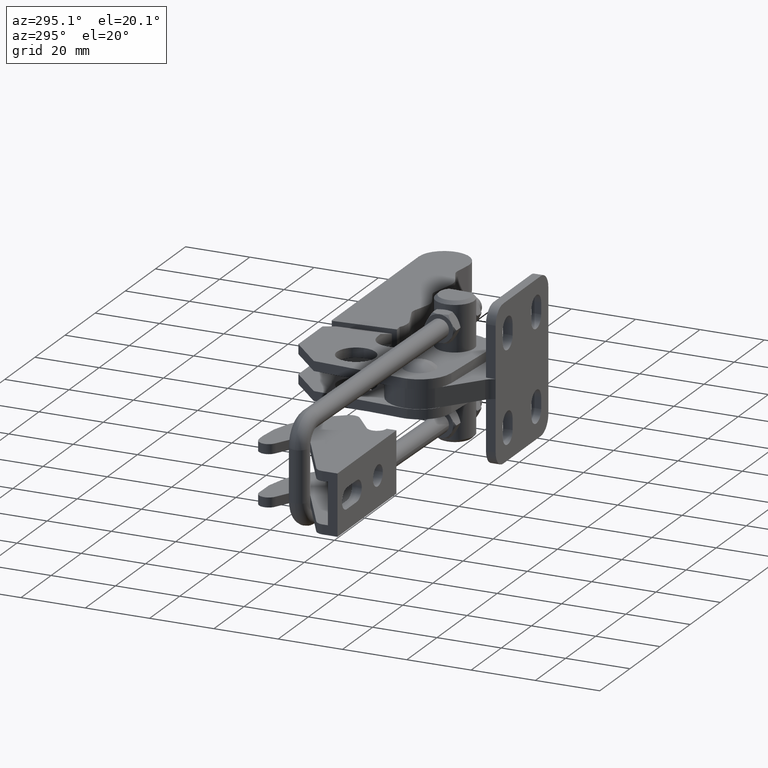
[diagram: clean part render]
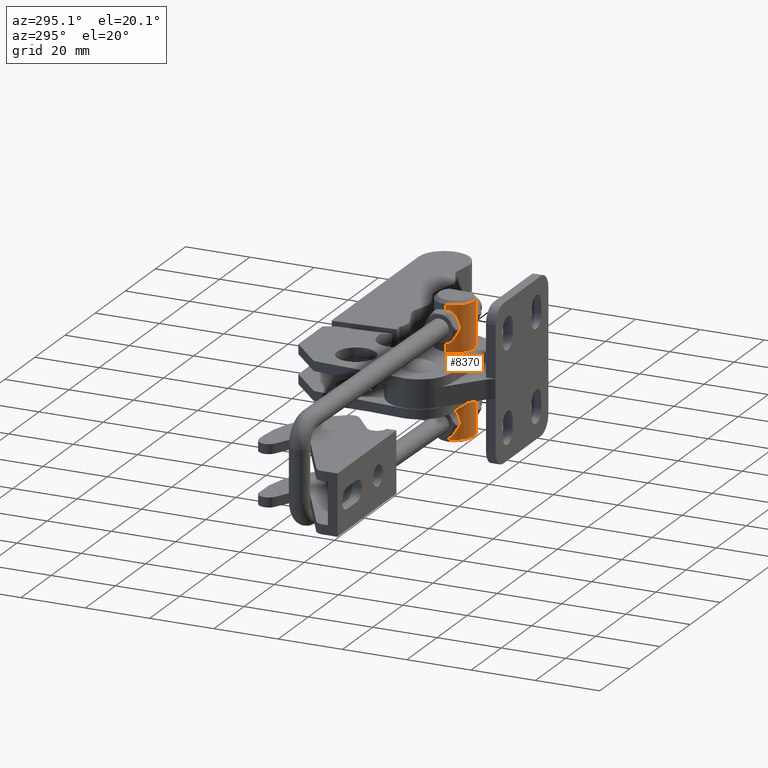
[diagram: same view with one face highlighted and labeled with its STEP entity id]
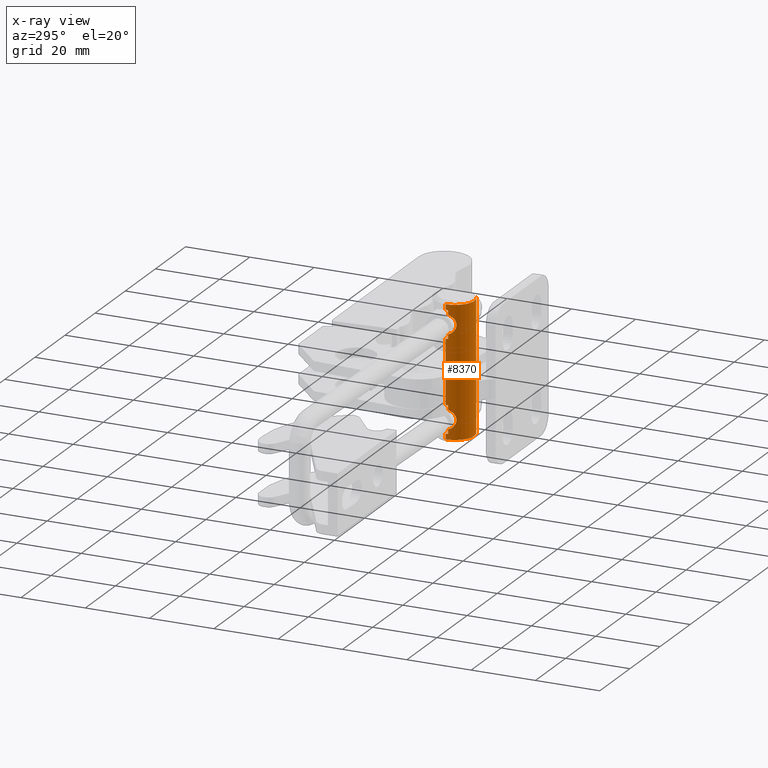
[diagram: x-ray of the same camera — body ghosted, the highlighted face saturated]
A machine part, auxiliary view. The second image highlights one B-rep face of the part: STEP entity #8370.
The next image is the same camera in x-ray: the body ghosted, the highlighted face saturated — about 0% of this face is hidden behind the body in this view.
In plain terms, the highlighted cylindrical surface (edge-blend (fillet) strip) has radius 6 mm, axis along (-0, -0, 1).
Its self-contained STEP definition (entity closure, byte-faithful):
#67 = VECTOR ( 'NONE', #3935, 1000.000000000000000 ) ;
#88 = CARTESIAN_POINT ( 'NONE',  ( -28.68610217046605400, 17.75992384205989100, -17.07219001802031500 ) ) ;
#92 = DIRECTION ( 'NONE',  ( 3.911366218132177800E-018, 7.658619818455770700E-019, -1.000000000000000000 ) ) ;
#195 = ORIENTED_EDGE ( 'NONE', *, *, #3616, .T. ) ;
#204 = CARTESIAN_POINT ( 'NONE',  ( -28.73578472387653800, 18.19636271290314900, -9.938293207638654500 ) ) ;
#293 = EDGE_CURVE ( 'NONE', #4925, #6559, #7005, .T. ) ;
#348 = DIRECTION ( 'NONE',  ( -4.510281037539698400E-017, -2.664535259100375700E-015, -1.000000000000000000 ) ) ;
#406 = DIRECTION ( 'NONE',  ( 9.073993480310691700E-018, 2.515382533872881800E-016, -1.000000000000000000 ) ) ;
#429 = B_SPLINE_CURVE_WITH_KNOTS ( 'NONE', 3,
 ( #1353, #2112, #2842, #8086 ),
 .UNSPECIFIED., .F., .F.,
 ( 4, 4 ),
 ( 0.003078957403695587600, 0.003361869258026193300 ),
 .UNSPECIFIED. ) ;
#471 = EDGE_LOOP ( 'NONE', ( #6320, #7148, #7825, #5339, #3355, #1881, #2345, #4806, #1843, #4710, #761, #195, #4216, #3247, #3546, #1170, #2672, #5985, #2584, #2975, #9307, #4793, #3645, #3816, #663, #8016 ) ) ;
#480 = CARTESIAN_POINT ( 'NONE',  ( -28.50866677094951000, 16.94863178786450700, 16.64256508088775300 ) ) ;
#490 = DIRECTION ( 'NONE',  ( -3.911366218132177800E-018, -7.658619818455770700E-019, 1.000000000000000000 ) ) ;
#515 = CARTESIAN_POINT ( 'NONE',  ( -28.06576543344585400, 15.87452966739249000, 13.46071246716071800 ) ) ;
#523 = EDGE_CURVE ( 'NONE', #3197, #2114, #5083, .T. ) ;
#562 = B_SPLINE_CURVE_WITH_KNOTS ( 'NONE', 3,
 ( #6605, #2115, #8861, #4340, #9713, #5086, #627, #5865, #1389, #6635, #2150, #7374, #2882, #8119, #3614, #8894, #4370, #9753, #5113, #656, #5905, #1419, #6673, #2183, #7409, #2914, #8158, #3648 ),
 .UNSPECIFIED., .F., .F.,
 ( 4, 2, 2, 2, 2, 2, 2, 2, 2, 2, 2, 2, 2, 4 ),
 ( 0.005551596557834361000, 0.006000160661444414000, 0.006448724765054468000, 0.007345852972274561100, 0.008242981179494655200, 0.008691545283104701300, 0.009140109386714745700, 0.009588673490324790100, 0.01003723759393483600, 0.01048580169754488200, 0.01093436580115492900, 0.01138292990476496800, 0.01183149400837501000, 0.01272862221559509900 ),
 .UNSPECIFIED. ) ;
#566 = CARTESIAN_POINT ( 'NONE',  ( -28.75203346772051600, 18.78737817134133100, 18.58012701892147300 ) ) ;
#627 = CARTESIAN_POINT ( 'NONE',  ( -28.43397478129987700, 16.72155574850926400, -12.04886762562735000 ) ) ;
#656 = CARTESIAN_POINT ( 'NONE',  ( -28.11355756720297400, 15.96751132215305800, -15.32127981136378600 ) ) ;
#663 = ORIENTED_EDGE ( 'NONE', *, *, #2597, .T. ) ;
#761 = ORIENTED_EDGE ( 'NONE', *, *, #3488, .T. ) ;
#818 = CARTESIAN_POINT ( 'NONE',  ( -28.71795397972040600, 18.01353155314767600, -17.14870660812920300 ) ) ;
#889 = CARTESIAN_POINT ( 'NONE',  ( -28.75203346772051200, 18.78737817134133100, -20.25000000000059000 ) ) ;
#944 = VERTEX_POINT ( 'NONE', #996 ) ;
#996 = CARTESIAN_POINT ( 'NONE',  ( -19.45577835765157100, 13.65126671144122000, 8.749999999999385400 ) ) ;
#1097 = FACE_OUTER_BOUND ( 'NONE', #471, .T. ) ;
#1170 = ORIENTED_EDGE ( 'NONE', *, *, #523, .F. ) ;
#1193 = VERTEX_POINT ( 'NONE', #4741 ) ;
#1210 = VERTEX_POINT ( 'NONE', #889 ) ;
#1230 = CARTESIAN_POINT ( 'NONE',  ( -28.28698109070231200, 16.33556312360038000, 16.01685722657382600 ) ) ;
#1235 = EDGE_CURVE ( 'NONE', #5920, #2746, #2189, .T. ) ;
#1264 = CARTESIAN_POINT ( 'NONE',  ( -28.14237166250690000, 16.02506473886343500, 13.04018921934738300 ) ) ;
#1311 = CIRCLE ( 'NONE', #8584, 6.000000000000001800 ) ;
#1353 = CARTESIAN_POINT ( 'NONE',  ( -28.71795397972040600, 18.01353155314767600, -18.50978854942941600 ) ) ;
#1371 = CARTESIAN_POINT ( 'NONE',  ( -16.75457558350878900, 18.54038765215882000, 21.24999999999930700 ) ) ;
#1389 = CARTESIAN_POINT ( 'NONE',  ( -28.21293147464852100, 16.17165078981867400, -12.73206058867614000 ) ) ;
#1406 = CARTESIAN_POINT ( 'NONE',  ( -28.71795397972035600, 18.01353155314724200, 21.24999999999930700 ) ) ;
#1419 = CARTESIAN_POINT ( 'NONE',  ( -28.20541690614272300, 16.15791472648090400, -15.72292597974756700 ) ) ;
#1477 = DIRECTION ( 'NONE',  ( 3.911366218132177800E-018, 7.658619818455770700E-019, -1.000000000000000000 ) ) ;
#1510 = CARTESIAN_POINT ( 'NONE',  ( -28.59242266330957300, 17.28377444715671600, -16.84807621135390900 ) ) ;
#1524 = CARTESIAN_POINT ( 'NONE',  ( -28.74159145377347400, 18.28915679037033500, 9.919872981077091400 ) ) ;
#1556 = DIRECTION ( 'NONE',  ( -3.911366218132177800E-018, -7.658619818455770700E-019, 1.000000000000000000 ) ) ;
#1673 = EDGE_CURVE ( 'NONE', #4925, #5920, #3661, .T. ) ;
#1709 = CARTESIAN_POINT ( 'NONE',  ( -28.72787195047175100, 18.10449348940780500, -9.961765433263471100 ) ) ;
#1712 = VERTEX_POINT ( 'NONE', #3361 ) ;
#1843 = ORIENTED_EDGE ( 'NONE', *, *, #4365, .T. ) ;
#1881 = ORIENTED_EDGE ( 'NONE', *, *, #6010, .F. ) ;
#1904 = EDGE_CURVE ( 'NONE', #2114, #7287, #9109, .T. ) ;
#1963 = CARTESIAN_POINT ( 'NONE',  ( -28.71795397972035600, 18.01353155314724200, 17.14870660812762500 ) ) ;
#1996 = CARTESIAN_POINT ( 'NONE',  ( -28.12340360563134600, 15.98680937636579800, 15.36971686143586700 ) ) ;
#2037 = CARTESIAN_POINT ( 'NONE',  ( -28.23969622418239900, 16.23327227604188000, 12.65179071003746900 ) ) ;
#2096 = DIRECTION ( 'NONE',  ( -3.911366218132177800E-018, -7.658619818455770700E-019, 1.000000000000000000 ) ) ;
#2112 = CARTESIAN_POINT ( 'NONE',  ( -28.72777881454624400, 18.10363930014551000, -18.53796744090989900 ) ) ;
#2114 = VERTEX_POINT ( 'NONE', #6297 ) ;
#2115 = CARTESIAN_POINT ( 'NONE',  ( -28.70223330861372100, 17.86935057913352800, -11.38964686430111000 ) ) ;
#2147 = CIRCLE ( 'NONE', #4290, 6.000000000000004400 ) ;
#2150 = CARTESIAN_POINT ( 'NONE',  ( -28.09689867659961100, 15.93473450021174300, -13.26780053206198500 ) ) ;
#2160 = CARTESIAN_POINT ( 'NONE',  ( -28.71795397972035600, 18.01353155314724200, 17.14870660812762500 ) ) ;
#2177 = CARTESIAN_POINT ( 'NONE',  ( -28.74159145377338100, 18.28915679037133700, -9.919872981078489400 ) ) ;
#2183 = CARTESIAN_POINT ( 'NONE',  ( -28.31121882937066700, 16.40159413163486200, -16.08708164160023900 ) ) ;
#2188 = CARTESIAN_POINT ( 'NONE',  ( -19.45577835765157100, 13.65126671144122000, 21.24999999999930700 ) ) ;
#2189 = LINE ( 'NONE', #2188, #7674 ) ;
#2260 = DIRECTION ( 'NONE',  ( 3.911366218132177800E-018, 7.658619818455770700E-019, -1.000000000000000000 ) ) ;
#2293 = CYLINDRICAL_SURFACE ( 'NONE', #6796, 6.000000000000004400 ) ;
#2339 = DIRECTION ( 'NONE',  ( -0.9997881570176433400, 0.02058254326520931500, 0.0000000000000000000 ) ) ;
#2345 = ORIENTED_EDGE ( 'NONE', *, *, #4604, .F. ) ;
#2371 = CIRCLE ( 'NONE', #9008, 6.000000000000001800 ) ;
#2502 = CARTESIAN_POINT ( 'NONE',  ( -22.75330452561465200, 18.66388291175007600, 8.749999999999385400 ) ) ;
#2584 = ORIENTED_EDGE ( 'NONE', *, *, #8247, .T. ) ;
#2592 = CARTESIAN_POINT ( 'NONE',  ( -28.73578472387651300, 18.19636271290286400, 18.56170679236127800 ) ) ;
#2597 = EDGE_CURVE ( 'NONE', #1210, #2746, #7173, .T. ) ;
#2672 = ORIENTED_EDGE ( 'NONE', *, *, #8881, .T. ) ;
#2688 = CARTESIAN_POINT ( 'NONE',  ( -28.70223330861365000, 17.86935057913306900, 17.11035313569877700 ) ) ;
#2699 = CARTESIAN_POINT ( 'NONE',  ( -28.75203346772051600, 18.78737817134133100, 21.24999999999930700 ) ) ;
#2723 = CARTESIAN_POINT ( 'NONE',  ( -28.05308675689912000, 15.85060052215524900, 14.94668779758230100 ) ) ;
#2746 = VERTEX_POINT ( 'NONE', #5293 ) ;
#2756 = CARTESIAN_POINT ( 'NONE',  ( -28.34874064001266400, 16.49534019951081700, 12.29860430993655200 ) ) ;
#2764 = CARTESIAN_POINT ( 'NONE',  ( -28.59242266330962000, 17.28377444715691200, 11.65192378864599800 ) ) ;
#2842 = CARTESIAN_POINT ( 'NONE',  ( -28.73572876905792100, 18.19546853048505900, -18.56152929135011200 ) ) ;
#2882 = CARTESIAN_POINT ( 'NONE',  ( -28.03586882680228600, 15.81870447073105400, -13.70198302336472200 ) ) ;
#2914 = CARTESIAN_POINT ( 'NONE',  ( -28.45953921259291500, 16.79711647815740200, -16.51918301580487400 ) ) ;
#2949 = CARTESIAN_POINT ( 'NONE',  ( -28.71795397972036000, 18.01353155314723200, 9.990211450570672700 ) ) ;
#2975 = ORIENTED_EDGE ( 'NONE', *, *, #9421, .T. ) ;
#3046 = DIRECTION ( 'NONE',  ( 2.428612866367529900E-017, 1.498801083243961300E-015, 1.000000000000000000 ) ) ;
#3057 = VECTOR ( 'NONE', #1477, 1000.000000000000000 ) ;
#3081 = CARTESIAN_POINT ( 'NONE',  ( -16.75457558350878900, 18.54038765215882000, -8.750000000000611100 ) ) ;
#3188 = VERTEX_POINT ( 'NONE', #9747 ) ;
#3197 = VERTEX_POINT ( 'NONE', #2177 ) ;
#3231 = AXIS2_PLACEMENT_3D ( 'NONE', #5644, #406, #9649 ) ;
#3243 = DIRECTION ( 'NONE',  ( 0.9997881570176433400, -0.02058254326520642500, 0.0000000000000000000 ) ) ;
#3247 = ORIENTED_EDGE ( 'NONE', *, *, #3259, .F. ) ;
#3259 = EDGE_CURVE ( 'NONE', #7287, #8001, #1311, .T. ) ;
#3273 = CARTESIAN_POINT ( 'NONE',  ( -28.74159145377347400, 18.28915679037033500, 9.919872981077091400 ) ) ;
#3331 = EDGE_CURVE ( 'NONE', #9127, #4436, #2371, .T. ) ;
#3336 = CARTESIAN_POINT ( 'NONE',  ( -28.72787195047171900, 18.10449348940744600, 18.53823456673642400 ) ) ;
#3355 = ORIENTED_EDGE ( 'NONE', *, *, #7388, .F. ) ;
#3361 = CARTESIAN_POINT ( 'NONE',  ( -28.71795397972036000, 18.01353155314726000, 11.35129339187102600 ) ) ;
#3462 = EDGE_CURVE ( 'NONE', #1210, #9127, #9197, .T. ) ;
#3466 = CARTESIAN_POINT ( 'NONE',  ( -28.01396457635300100, 15.77840517175845700, 14.50182651144169700 ) ) ;
#3483 = DIRECTION ( 'NONE',  ( -2.428612866367529900E-017, -1.498801083243961300E-015, -1.000000000000000000 ) ) ;
#3488 = EDGE_CURVE ( 'NONE', #9580, #1712, #3803, .T. ) ;
#3495 = CARTESIAN_POINT ( 'NONE',  ( -28.53154755598592000, 17.02621719537039300, 11.79986963667775700 ) ) ;
#3546 = ORIENTED_EDGE ( 'NONE', *, *, #1904, .F. ) ;
#3614 = CARTESIAN_POINT ( 'NONE',  ( -28.00900320490846700, 15.76946781994378800, -14.14712547943543400 ) ) ;
#3616 = EDGE_CURVE ( 'NONE', #1712, #6577, #7274, .T. ) ;
#3645 = ORIENTED_EDGE ( 'NONE', *, *, #3331, .F. ) ;
#3648 = CARTESIAN_POINT ( 'NONE',  ( -28.59242266330957300, 17.28377444715671600, -16.84807621135390900 ) ) ;
#3661 = CIRCLE ( 'NONE', #3231, 6.000000000000004400 ) ;
#3708 = CARTESIAN_POINT ( 'NONE',  ( -28.71795397972036000, 18.01353155314723200, 18.50978854942789600 ) ) ;
#3780 = CARTESIAN_POINT ( 'NONE',  ( -28.59242266330957300, 17.28377444715671600, -16.84807621135390900 ) ) ;
#3803 = B_SPLINE_CURVE_WITH_KNOTS ( 'NONE', 3,
 ( #2764, #6485, #8764, #4266, #9623, #5005 ),
 .UNSPECIFIED., .F., .F.,
 ( 4, 2, 4 ),
 ( 0.01272862221559533000, 0.01312842919038509700, 0.01352823616517486200 ),
 .UNSPECIFIED. ) ;
#3816 = ORIENTED_EDGE ( 'NONE', *, *, #3462, .F. ) ;
#3898 = CARTESIAN_POINT ( 'NONE',  ( -22.75330452561465200, 18.66388291175007600, -18.58012701892287700 ) ) ;
#3935 = DIRECTION ( 'NONE',  ( 3.911366218132177800E-018, 7.658619818455770700E-019, -1.000000000000000000 ) ) ;
#4092 = DIRECTION ( 'NONE',  ( 3.911366218132177800E-018, 7.658619818455770700E-019, -1.000000000000000000 ) ) ;
#4156 = DIRECTION ( 'NONE',  ( -3.911366218132177800E-018, -7.658619818455770700E-019, 1.000000000000000000 ) ) ;
#4189 = CARTESIAN_POINT ( 'NONE',  ( -28.68128892045304900, 17.72672446324665400, 17.06079458370042400 ) ) ;
#4216 = ORIENTED_EDGE ( 'NONE', *, *, #8300, .T. ) ;
#4222 = CARTESIAN_POINT ( 'NONE',  ( -28.01161338929406600, 15.77421247632716100, 14.05322783960395200 ) ) ;
#4266 = CARTESIAN_POINT ( 'NONE',  ( -28.68610217046601100, 17.75992384205967800, 11.42780998197979200 ) ) ;
#4290 = AXIS2_PLACEMENT_3D ( 'NONE', #2502, #7737, #3243 ) ;
#4305 = VERTEX_POINT ( 'NONE', #9053 ) ;
#4340 = CARTESIAN_POINT ( 'NONE',  ( -28.63161229473696800, 17.45360909375468600, -11.55734189889594500 ) ) ;
#4365 = EDGE_CURVE ( 'NONE', #6622, #7919, #5018, .T. ) ;
#4370 = CARTESIAN_POINT ( 'NONE',  ( -28.01937996661109800, 15.78824980934989100, -14.59894568656095400 ) ) ;
#4424 = DIRECTION ( 'NONE',  ( -3.911366218132177800E-018, -7.658619818455770700E-019, 1.000000000000000000 ) ) ;
#4436 = VERTEX_POINT ( 'NONE', #4727 ) ;
#4512 = VECTOR ( 'NONE', #9096, 1000.000000000000000 ) ;
#4532 = CARTESIAN_POINT ( 'NONE',  ( -28.64391454709585000, 17.51673711924825100, -16.97194598534335000 ) ) ;
#4546 = CARTESIAN_POINT ( 'NONE',  ( -28.75203346772051600, 18.78737817134133100, 21.24999999999930700 ) ) ;
#4604 = EDGE_CURVE ( 'NONE', #6193, #4657, #6933, .T. ) ;
#4651 = DIRECTION ( 'NONE',  ( 4.625929269271484500E-015, 1.000000000000000000, -2.891205793294677400E-015 ) ) ;
#4657 = VERTEX_POINT ( 'NONE', #566 ) ;
#4704 = EDGE_CURVE ( 'NONE', #7222, #4436, #429, .T. ) ;
#4710 = ORIENTED_EDGE ( 'NONE', *, *, #5848, .T. ) ;
#4727 = CARTESIAN_POINT ( 'NONE',  ( -28.74159145377348400, 18.28915679037048700, -18.58012701892288000 ) ) ;
#4741 = CARTESIAN_POINT ( 'NONE',  ( -28.71795397972040600, 18.01353155314767600, -9.990211450571953500 ) ) ;
#4780 = VECTOR ( 'NONE', #92, 1000.000000000000000 ) ;
#4793 = ORIENTED_EDGE ( 'NONE', *, *, #4704, .T. ) ;
#4804 = DIRECTION ( 'NONE',  ( 0.0000000000000000000, -1.000000000000000000, 2.602085213965209100E-015 ) ) ;
#4806 = ORIENTED_EDGE ( 'NONE', *, *, #5757, .T. ) ;
#4841 = LINE ( 'NONE', #8440, #6885 ) ;
#4925 = VERTEX_POINT ( 'NONE', #3081 ) ;
#4930 = CARTESIAN_POINT ( 'NONE',  ( -28.60299672518745200, 17.32311021717755400, 16.87434424638160400 ) ) ;
#4963 = CARTESIAN_POINT ( 'NONE',  ( -28.04652690471854000, 15.83853105131932700, 13.60508626728172600 ) ) ;
#4969 = VECTOR ( 'NONE', #7326, 1000.000000000000000 ) ;
#5005 = CARTESIAN_POINT ( 'NONE',  ( -28.71795397972036000, 18.01353155314726000, 11.35129339187102600 ) ) ;
#5018 = LINE ( 'NONE', #7603, #4780 ) ;
#5062 = CARTESIAN_POINT ( 'NONE',  ( -19.45577835765157100, 13.65126671144122000, -8.750000000000614600 ) ) ;
#5083 = CIRCLE ( 'NONE', #6000, 6.000000000000003600 ) ;
#5086 = CARTESIAN_POINT ( 'NONE',  ( -28.50866677094961300, 16.94863178786485500, -11.85743491911200700 ) ) ;
#5113 = CARTESIAN_POINT ( 'NONE',  ( -28.06576543344580100, 15.87452966739239600, -15.03928753283900500 ) ) ;
#5220 = CARTESIAN_POINT ( 'NONE',  ( -28.72777881454621300, 18.10363930014515800, 9.962032559090140200 ) ) ;
#5263 = CARTESIAN_POINT ( 'NONE',  ( -28.75203346772051600, 18.78737817134133100, -18.58012701892287700 ) ) ;
#5286 = CARTESIAN_POINT ( 'NONE',  ( -28.70393177924275500, 17.88492797706825500, -17.11449686760571600 ) ) ;
#5293 = CARTESIAN_POINT ( 'NONE',  ( -19.45577835765157100, 13.65126671144122400, -20.25000000000059000 ) ) ;
#5339 = ORIENTED_EDGE ( 'NONE', *, *, #7758, .F. ) ;
#5414 = CARTESIAN_POINT ( 'NONE',  ( -28.74159145377338100, 18.28915679037133700, -9.919872981078489400 ) ) ;
#5501 = CARTESIAN_POINT ( 'NONE',  ( -19.45577835765157100, 13.65126671144121500, 20.24999999999936100 ) ) ;
#5516 = VERTEX_POINT ( 'NONE', #1510 ) ;
#5545 = LINE ( 'NONE', #8437, #67 ) ;
#5579 = CARTESIAN_POINT ( 'NONE',  ( -22.75330452561465200, 18.66388291175007600, -9.919872981078489400 ) ) ;
#5644 = CARTESIAN_POINT ( 'NONE',  ( -22.75330452561465200, 18.66388291175007600, -8.750000000000611100 ) ) ;
#5706 = CARTESIAN_POINT ( 'NONE',  ( -28.43397478129976700, 16.72155574850895800, 16.45113237437239600 ) ) ;
#5737 = CARTESIAN_POINT ( 'NONE',  ( -28.11355756720304900, 15.96751132215316500, 13.17872018863595200 ) ) ;
#5757 = EDGE_CURVE ( 'NONE', #6193, #6622, #6665, .T. ) ;
#5848 = EDGE_CURVE ( 'NONE', #7919, #9580, #7403, .T. ) ;
#5865 = CARTESIAN_POINT ( 'NONE',  ( -28.28698109070241500, 16.33556312360062200, -12.48314277342587900 ) ) ;
#5905 = CARTESIAN_POINT ( 'NONE',  ( -28.14237166250682900, 16.02506473886330300, -15.45981078065237700 ) ) ;
#5920 = VERTEX_POINT ( 'NONE', #5062 ) ;
#5985 = ORIENTED_EDGE ( 'NONE', *, *, #8478, .T. ) ;
#5999 = CARTESIAN_POINT ( 'NONE',  ( -28.73572876905790000, 18.19546853048480600, 9.938470708649887800 ) ) ;
#6000 = AXIS2_PLACEMENT_3D ( 'NONE', #5579, #348, #4804 ) ;
#6010 = EDGE_CURVE ( 'NONE', #4657, #7623, #8500, .T. ) ;
#6032 = VECTOR ( 'NONE', #4092, 1000.000000000000000 ) ;
#6186 = VERTEX_POINT ( 'NONE', #5501 ) ;
#6193 = VERTEX_POINT ( 'NONE', #7033 ) ;
#6216 = CARTESIAN_POINT ( 'NONE',  ( -28.75203346772051900, 18.78737817134133100, 20.24999999999936100 ) ) ;
#6297 = CARTESIAN_POINT ( 'NONE',  ( -28.75203346772051600, 18.78737817134133100, -9.919872981078489400 ) ) ;
#6320 = ORIENTED_EDGE ( 'NONE', *, *, #1673, .F. ) ;
#6474 = CARTESIAN_POINT ( 'NONE',  ( -28.21293147464842800, 16.17165078981847900, 15.76793941132355000 ) ) ;
#6485 = CARTESIAN_POINT ( 'NONE',  ( -28.61955177629839800, 17.39855535009052500, 11.58599142640585500 ) ) ;
#6508 = CARTESIAN_POINT ( 'NONE',  ( -28.20541690614281500, 16.15791472648105300, 12.77707402025221800 ) ) ;
#6559 = VERTEX_POINT ( 'NONE', #7379 ) ;
#6573 = CARTESIAN_POINT ( 'NONE',  ( -22.75330452561465200, 18.66388291175007600, -20.25000000000059000 ) ) ;
#6577 = VERTEX_POINT ( 'NONE', #2949 ) ;
#6605 = CARTESIAN_POINT ( 'NONE',  ( -28.71795397972040600, 18.01353155314769000, -11.35129339187216500 ) ) ;
#6622 = VERTEX_POINT ( 'NONE', #3708 ) ;
#6635 = CARTESIAN_POINT ( 'NONE',  ( -28.12340360563139900, 15.98680937636592600, -13.13028313856381300 ) ) ;
#6665 = B_SPLINE_CURVE_WITH_KNOTS ( 'NONE', 3,
 ( #7104, #2592, #3336, #8580 ),
 .UNSPECIFIED., .F., .F.,
 ( 4, 4 ),
 ( 0.003871627593182385000, 0.004154026148367888200 ),
 .UNSPECIFIED. ) ;
#6673 = CARTESIAN_POINT ( 'NONE',  ( -28.23969622418233200, 16.23327227604173100, -15.84820928996232300 ) ) ;
#6703 = CARTESIAN_POINT ( 'NONE',  ( -28.71795397972036000, 18.01353155314723200, 9.990211450570672700 ) ) ;
#6796 = AXIS2_PLACEMENT_3D ( 'NONE', #7498, #1556, #2339 ) ;
#6885 = VECTOR ( 'NONE', #9256, 1000.000000000000000 ) ;
#6893 = EDGE_CURVE ( 'NONE', #3188, #7222, #4841, .T. ) ;
#6933 = CIRCLE ( 'NONE', #8223, 6.000000000000003600 ) ;
#6951 = CARTESIAN_POINT ( 'NONE',  ( -28.71795397972040600, 18.01353155314767600, -9.990211450571953500 ) ) ;
#7005 = LINE ( 'NONE', #1371, #4969 ) ;
#7033 = CARTESIAN_POINT ( 'NONE',  ( -28.74159145377336700, 18.28915679037113800, 18.58012701892147300 ) ) ;
#7086 = VECTOR ( 'NONE', #4156, 1000.000000000000000 ) ;
#7104 = CARTESIAN_POINT ( 'NONE',  ( -28.74159145377336700, 18.28915679037113800, 18.58012701892147300 ) ) ;
#7148 = ORIENTED_EDGE ( 'NONE', *, *, #293, .T. ) ;
#7162 = VECTOR ( 'NONE', #490, 1000.000000000000000 ) ;
#7173 = CIRCLE ( 'NONE', #8388, 6.000000000000000900 ) ;
#7218 = CARTESIAN_POINT ( 'NONE',  ( -28.09689867659955800, 15.93473450021162700, 15.23219946793768500 ) ) ;
#7222 = VERTEX_POINT ( 'NONE', #7983 ) ;
#7230 = CARTESIAN_POINT ( 'NONE',  ( -28.59242266330962000, 17.28377444715691200, 11.65192378864599800 ) ) ;
#7251 = CARTESIAN_POINT ( 'NONE',  ( -28.31121882937073800, 16.40159413163504000, 12.41291835839958100 ) ) ;
#7270 = B_SPLINE_CURVE_WITH_KNOTS ( 'NONE', 3,
 ( #5414, #204, #1709, #6951 ),
 .UNSPECIFIED., .F., .F.,
 ( 4, 4 ),
 ( 0.003871627593182065000, 0.004154026148367307900 ),
 .UNSPECIFIED. ) ;
#7274 = LINE ( 'NONE', #1406, #3057 ) ;
#7287 = VERTEX_POINT ( 'NONE', #9671 ) ;
#7317 = DIRECTION ( 'NONE',  ( -0.9997881570176433400, 0.02058254326520932800, 0.0000000000000000000 ) ) ;
#7326 = DIRECTION ( 'NONE',  ( -3.911366218132177800E-018, -7.658619818455770700E-019, 1.000000000000000000 ) ) ;
#7374 = CARTESIAN_POINT ( 'NONE',  ( -28.05308675689916200, 15.85060052215533900, -13.55331220241736500 ) ) ;
#7379 = CARTESIAN_POINT ( 'NONE',  ( -16.75457558350878900, 18.54038765215882000, 8.749999999999385400 ) ) ;
#7388 = EDGE_CURVE ( 'NONE', #7623, #6186, #9664, .T. ) ;
#7403 = B_SPLINE_CURVE_WITH_KNOTS ( 'NONE', 3,
 ( #1963, #2688, #4189, #9542, #4930, #480, #5706, #1230, #6474, #1996, #7218, #2723, #7969, #3466, #8717, #4222, #9574, #4963, #515, #5737, #1264, #6508, #2037, #7251, #2756, #8002, #3495, #8753 ),
 .UNSPECIFIED., .F., .F.,
 ( 4, 2, 2, 2, 2, 2, 2, 2, 2, 2, 2, 2, 2, 4 ),
 ( 0.005551596557834852800, 0.006000160661444891100, 0.006448724765054930300, 0.007345852972274993100, 0.008242981179495055900, 0.008691545283105084700, 0.009140109386715113500, 0.009588673490325140500, 0.01003723759393516900, 0.01048580169754519800, 0.01093436580115522700, 0.01138292990476525400, 0.01183149400837528100, 0.01272862221559533000 ),
 .UNSPECIFIED. ) ;
#7409 = CARTESIAN_POINT ( 'NONE',  ( -28.34874064001260100, 16.49534019951064300, -16.20139569006327900 ) ) ;
#7498 = CARTESIAN_POINT ( 'NONE',  ( -22.75330452561465200, 18.66388291175007600, 21.24999999999930700 ) ) ;
#7524 = CARTESIAN_POINT ( 'NONE',  ( -22.75330452561465200, 18.66388291175007600, 9.919872981077089600 ) ) ;
#7603 = CARTESIAN_POINT ( 'NONE',  ( -28.71795397972035600, 18.01353155314724200, 21.24999999999930700 ) ) ;
#7623 = VERTEX_POINT ( 'NONE', #6216 ) ;
#7674 = VECTOR ( 'NONE', #2260, 1000.000000000000000 ) ;
#7737 = DIRECTION ( 'NONE',  ( -3.911366218132177800E-018, -7.658619818455770700E-019, 1.000000000000000000 ) ) ;
#7758 = EDGE_CURVE ( 'NONE', #6186, #944, #8018, .T. ) ;
#7825 = ORIENTED_EDGE ( 'NONE', *, *, #9177, .F. ) ;
#7919 = VERTEX_POINT ( 'NONE', #2160 ) ;
#7969 = CARTESIAN_POINT ( 'NONE',  ( -28.03586882680225000, 15.81870447073098500, 14.79801697663494600 ) ) ;
#7983 = CARTESIAN_POINT ( 'NONE',  ( -28.71795397972040600, 18.01353155314767600, -18.50978854942941600 ) ) ;
#7989 = CARTESIAN_POINT ( 'NONE',  ( -22.75330452561465200, 18.66388291175007600, 18.58012701892147300 ) ) ;
#8001 = VERTEX_POINT ( 'NONE', #3273 ) ;
#8002 = CARTESIAN_POINT ( 'NONE',  ( -28.45953921259296100, 16.79711647815758000, 11.98081698419499500 ) ) ;
#8016 = ORIENTED_EDGE ( 'NONE', *, *, #1235, .F. ) ;
#8018 = LINE ( 'NONE', #8582, #6032 ) ;
#8023 = B_SPLINE_CURVE_WITH_KNOTS ( 'NONE', 3,
 ( #3780, #8288, #4532, #88, #5286, #818 ),
 .UNSPECIFIED., .F., .F.,
 ( 4, 2, 4 ),
 ( 0.01272862221559509900, 0.01312842919038521200, 0.01352823616517532400 ),
 .UNSPECIFIED. ) ;
#8027 = AXIS2_PLACEMENT_3D ( 'NONE', #8961, #4424, #9818 ) ;
#8086 = CARTESIAN_POINT ( 'NONE',  ( -28.74159145377348400, 18.28915679037048700, -18.58012701892288000 ) ) ;
#8119 = CARTESIAN_POINT ( 'NONE',  ( -28.01396457635300100, 15.77840517175848400, -13.99817348855797900 ) ) ;
#8158 = CARTESIAN_POINT ( 'NONE',  ( -28.53154755598587000, 17.02621719537019400, -16.70013036332213100 ) ) ;
#8223 = AXIS2_PLACEMENT_3D ( 'NONE', #7989, #3483, #8738 ) ;
#8247 = EDGE_CURVE ( 'NONE', #4305, #5516, #562, .T. ) ;
#8279 = DIRECTION ( 'NONE',  ( 0.0000000000000000000, 1.000000000000000000, -1.445602896647338700E-015 ) ) ;
#8288 = CARTESIAN_POINT ( 'NONE',  ( -28.61955177629836600, 17.39855535009042600, -16.91400857359411700 ) ) ;
#8300 = EDGE_CURVE ( 'NONE', #6577, #8001, #8774, .T. ) ;
#8370 = ADVANCED_FACE ( 'NONE', ( #1097 ), #2293, .T. ) ;
#8388 = AXIS2_PLACEMENT_3D ( 'NONE', #6573, #2096, #7317 ) ;
#8437 = CARTESIAN_POINT ( 'NONE',  ( -28.71795397972040600, 18.01353155314769000, 21.24999999999930700 ) ) ;
#8440 = CARTESIAN_POINT ( 'NONE',  ( -28.71795397972040600, 18.01353155314769000, 21.24999999999930700 ) ) ;
#8478 = EDGE_CURVE ( 'NONE', #1193, #4305, #5545, .T. ) ;
#8500 = LINE ( 'NONE', #4546, #4512 ) ;
#8580 = CARTESIAN_POINT ( 'NONE',  ( -28.71795397972036000, 18.01353155314723200, 18.50978854942789600 ) ) ;
#8582 = CARTESIAN_POINT ( 'NONE',  ( -19.45577835765157100, 13.65126671144122000, 21.24999999999930700 ) ) ;
#8584 = AXIS2_PLACEMENT_3D ( 'NONE', #7524, #3046, #8279 ) ;
#8717 = CARTESIAN_POINT ( 'NONE',  ( -28.00900320490846300, 15.76946781994378100, 14.35287452056424400 ) ) ;
#8738 = DIRECTION ( 'NONE',  ( -3.469446951953612200E-015, -1.000000000000000000, 1.734723475976806100E-015 ) ) ;
#8753 = CARTESIAN_POINT ( 'NONE',  ( -28.59242266330962000, 17.28377444715691200, 11.65192378864599800 ) ) ;
#8764 = CARTESIAN_POINT ( 'NONE',  ( -28.64391454709585000, 17.51673711924825100, 11.52805401465668400 ) ) ;
#8774 = B_SPLINE_CURVE_WITH_KNOTS ( 'NONE', 3,
 ( #6703, #5220, #5999, #1524 ),
 .UNSPECIFIED., .F., .F.,
 ( 4, 4 ),
 ( 0.003078957403695583700, 0.003361869258026500300 ),
 .UNSPECIFIED. ) ;
#8861 = CARTESIAN_POINT ( 'NONE',  ( -28.68128892045312000, 17.72672446324709800, -11.43920541629943300 ) ) ;
#8881 = EDGE_CURVE ( 'NONE', #3197, #1193, #7270, .T. ) ;
#8894 = CARTESIAN_POINT ( 'NONE',  ( -28.01161338929404500, 15.77421247632712900, -14.44677216039574000 ) ) ;
#8961 = CARTESIAN_POINT ( 'NONE',  ( -22.75330452561465200, 18.66388291175007600, 20.24999999999936100 ) ) ;
#9008 = AXIS2_PLACEMENT_3D ( 'NONE', #3898, #9212, #4651 ) ;
#9053 = CARTESIAN_POINT ( 'NONE',  ( -28.71795397972040600, 18.01353155314769000, -11.35129339187216500 ) ) ;
#9096 = DIRECTION ( 'NONE',  ( -3.911366218132177800E-018, -7.658619818455770700E-019, 1.000000000000000000 ) ) ;
#9109 = LINE ( 'NONE', #9225, #7086 ) ;
#9127 = VERTEX_POINT ( 'NONE', #5263 ) ;
#9177 = EDGE_CURVE ( 'NONE', #944, #6559, #2147, .T. ) ;
#9197 = LINE ( 'NONE', #2699, #7162 ) ;
#9212 = DIRECTION ( 'NONE',  ( 4.510281037539698400E-017, 2.664535259100375700E-015, 1.000000000000000000 ) ) ;
#9225 = CARTESIAN_POINT ( 'NONE',  ( -28.75203346772051600, 18.78737817134133100, 21.24999999999930700 ) ) ;
#9256 = DIRECTION ( 'NONE',  ( 3.911366218132177800E-018, 7.658619818455770700E-019, -1.000000000000000000 ) ) ;
#9307 = ORIENTED_EDGE ( 'NONE', *, *, #6893, .T. ) ;
#9421 = EDGE_CURVE ( 'NONE', #5516, #3188, #8023, .T. ) ;
#9542 = CARTESIAN_POINT ( 'NONE',  ( -28.63161229473689000, 17.45360909375427700, 16.94265810110386600 ) ) ;
#9574 = CARTESIAN_POINT ( 'NONE',  ( -28.01937996661113000, 15.78824980934993500, 13.90105431343873800 ) ) ;
#9580 = VERTEX_POINT ( 'NONE', #7230 ) ;
#9623 = CARTESIAN_POINT ( 'NONE',  ( -28.70393177924270500, 17.88492797706792500, 11.38550313239441700 ) ) ;
#9649 = DIRECTION ( 'NONE',  ( -0.02058254326521278400, -0.9997881570176433400, -2.891205793294676400E-016 ) ) ;
#9664 = CIRCLE ( 'NONE', #8027, 6.000000000000007100 ) ;
#9671 = CARTESIAN_POINT ( 'NONE',  ( -28.75203346772051600, 18.78737817134133100, 9.919872981077089600 ) ) ;
#9713 = CARTESIAN_POINT ( 'NONE',  ( -28.60299672518754800, 17.32311021717795200, -11.62565575361819900 ) ) ;
#9747 = CARTESIAN_POINT ( 'NONE',  ( -28.71795397972040600, 18.01353155314767600, -17.14870660812920300 ) ) ;
#9753 = CARTESIAN_POINT ( 'NONE',  ( -28.04652690471849400, 15.83853105131924700, -14.89491373271799400 ) ) ;
#9818 = DIRECTION ( 'NONE',  ( -0.9997881570176433400, 0.02058254326520930800, 0.0000000000000000000 ) ) ;